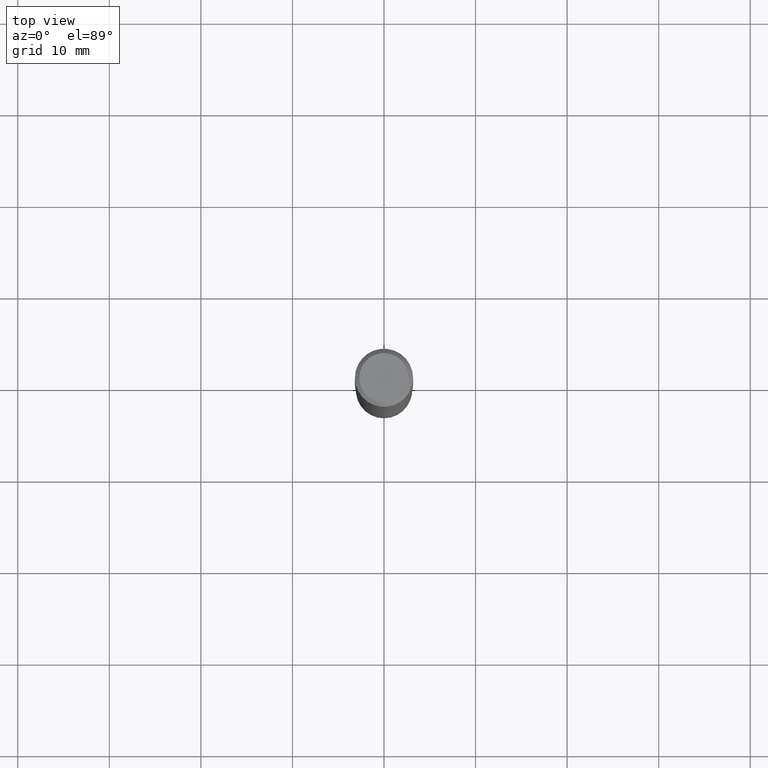
[diagram: clean part render]
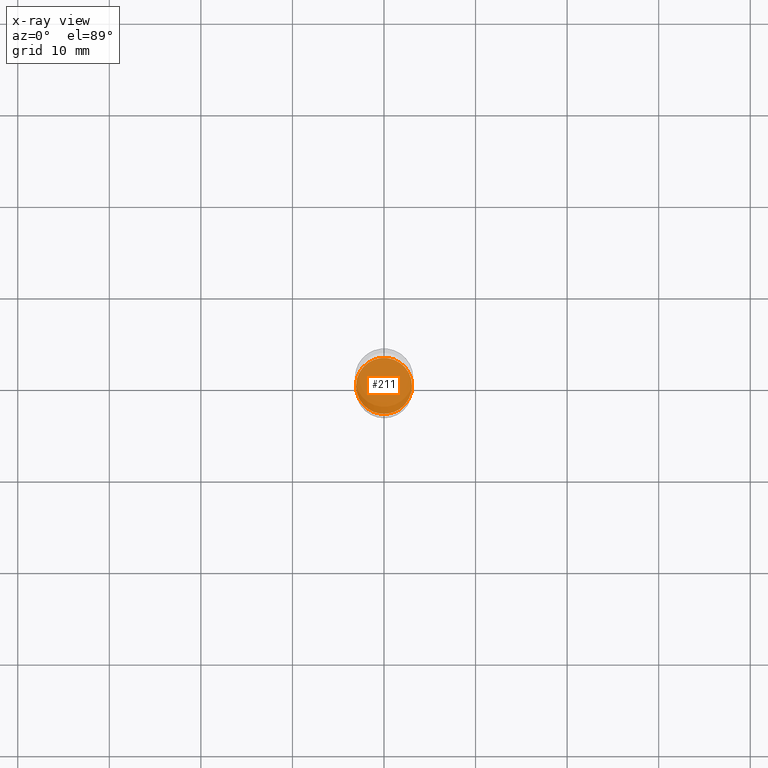
[diagram: x-ray — body ghosted, one internal face saturated and labeled with its STEP entity id]
A machine part, top view, then the same camera in x-ray: the body is ghosted and one INTERNAL B-rep face — a face not visible from any outside direction — is saturated and labeled: STEP entity #211.
In plain terms, the highlighted planar face has unit normal (-0, 0, 1).
Its self-contained STEP definition (entity closure, byte-faithful):
#12 = ORIENTED_EDGE ( 'NONE', *, *, #425, .F. ) ;
#17 = DIRECTION ( 'NONE',  ( -2.438088387897960049E-29, 3.491481338843145188E-15, 1.000000000000000000 ) ) ;
#46 = EDGE_LOOP ( 'NONE', ( #206, #12 ) ) ;
#82 = FACE_OUTER_BOUND ( 'NONE', #46, .T. ) ;
#84 = AXIS2_PLACEMENT_3D ( 'NONE', #317, #392, #397 ) ;
#99 = VERTEX_POINT ( 'NONE', #213 ) ;
#155 = CIRCLE ( 'NONE', #314, 0.1204999999999999960 ) ;
#197 = PLANE ( 'NONE',  #275 ) ;
#206 = ORIENTED_EDGE ( 'NONE', *, *, #263, .F. ) ;
#211 = ADVANCED_FACE ( 'NONE', ( #82 ), #197, .F. ) ;
#213 = CARTESIAN_POINT ( 'NONE',  ( -0.1204999999999999960, -6.314395186888211441E-15, -2.054499999999999993 ) ) ;
#214 = CARTESIAN_POINT ( 'NONE',  ( 0.1204999999999999960, -8.014695413314437640E-15, -2.054499999999999993 ) ) ;
#263 = EDGE_CURVE ( 'NONE', #417, #99, #155, .T. ) ;
#264 = DIRECTION ( 'NONE',  ( 1.000000000000000000, -6.982962677686265922E-15, 4.876176775795935793E-29 ) ) ;
#275 = AXIS2_PLACEMENT_3D ( 'NONE', #339, #17, #264 ) ;
#305 = CARTESIAN_POINT ( 'NONE',  ( 5.024215662307363891E-29, -7.173248410653242943E-15, -2.054499999999999993 ) ) ;
#314 = AXIS2_PLACEMENT_3D ( 'NONE', #305, #457, #459 ) ;
#317 = CARTESIAN_POINT ( 'NONE',  ( 5.024215662307363891E-29, -7.173248410653242943E-15, -2.054499999999999993 ) ) ;
#339 = CARTESIAN_POINT ( 'NONE',  ( 5.024215662307363891E-29, -7.173248410653242943E-15, -2.054499999999999993 ) ) ;
#392 = DIRECTION ( 'NONE',  ( -2.445468806185136597E-29, 3.491481338843145583E-15, 1.000000000000000000 ) ) ;
#397 = DIRECTION ( 'NONE',  ( 1.000000000000000000, -6.982962677686265133E-15, 0.000000000000000000 ) ) ;
#417 = VERTEX_POINT ( 'NONE', #214 ) ;
#425 = EDGE_CURVE ( 'NONE', #99, #417, #442, .T. ) ;
#442 = CIRCLE ( 'NONE', #84, 0.1204999999999999960 ) ;
#457 = DIRECTION ( 'NONE',  ( -2.445468806185136597E-29, 3.491481338843145583E-15, 1.000000000000000000 ) ) ;
#459 = DIRECTION ( 'NONE',  ( 1.000000000000000000, -6.982962677686265133E-15, 0.000000000000000000 ) ) ;